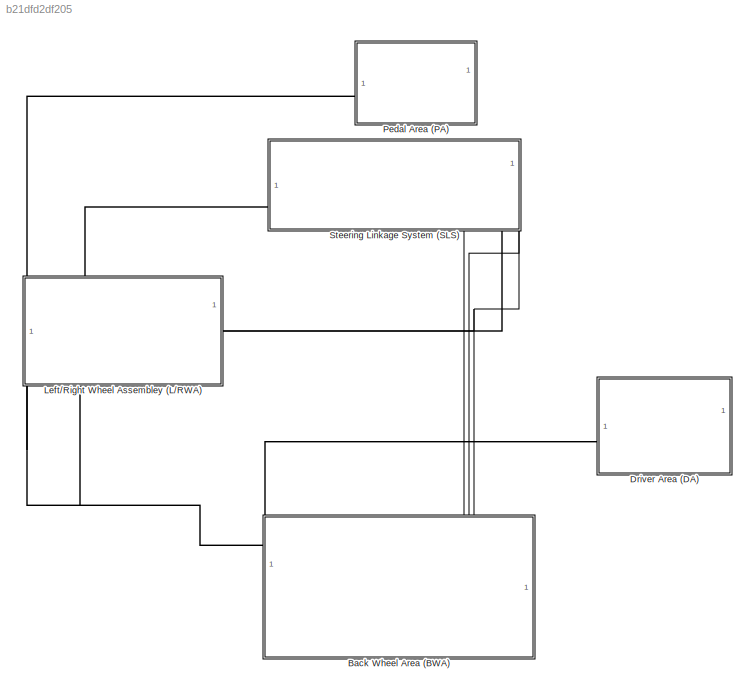
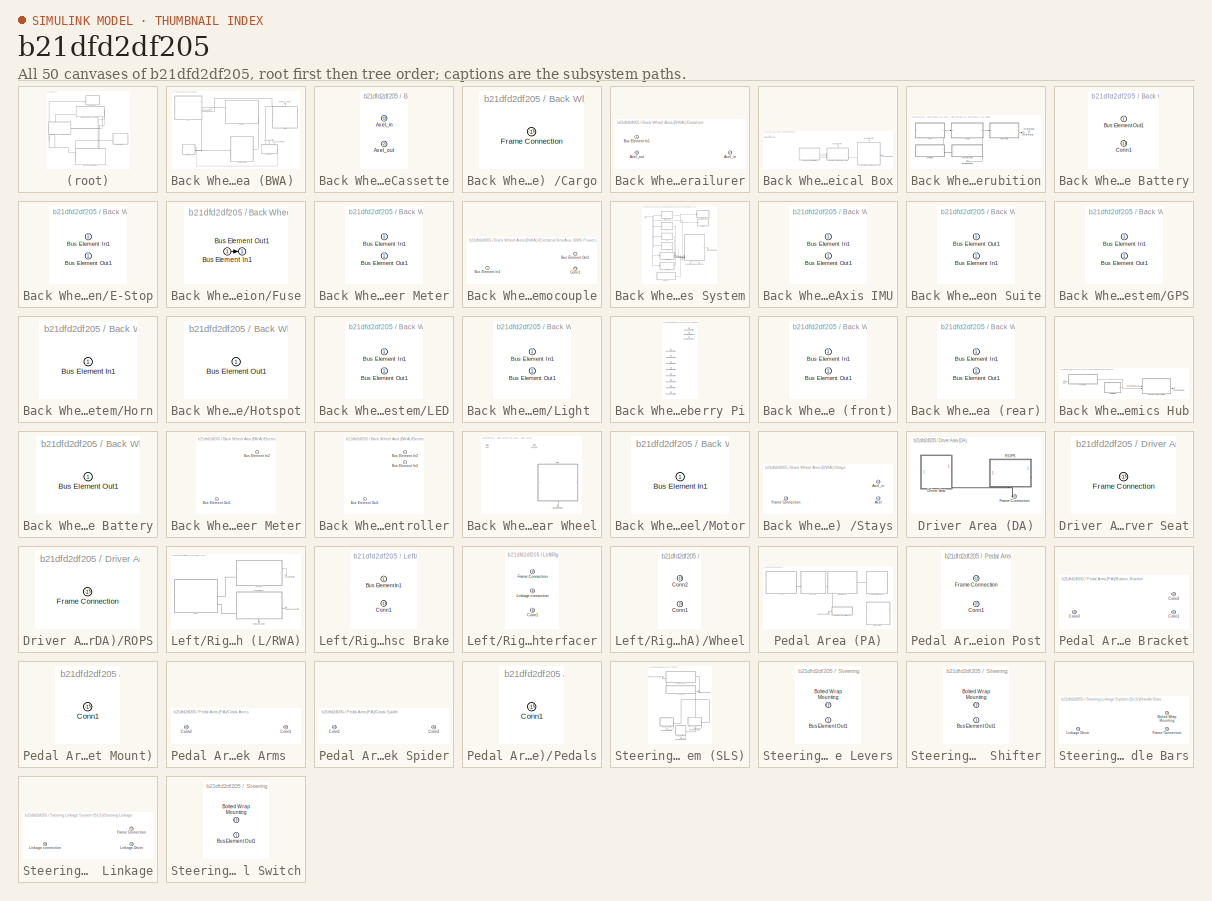
[diagram: thumbnail index - all 50 canvases of the model, root first then tree order]
MODEL slx_b21dfd2df205
KIND model
CONFIG AbsTol = auto
CONFIG EnableMultiTasking = off
CONFIG FixedStep = auto
CONFIG MaxStep = auto
CONFIG MinStep = auto
CONFIG RelTol = 1e-3
CONFIG SampleTimeConstraint = Unconstrained
CONFIG SolverName = VariableStepAuto
CONFIG StartTime = 0.0
CONFIG StopTime = 10.0
BLOCK [SubSystem] Back Wheel Area (BWA) 
  PortSchema = {"entries":[{"content":{"headerSize":26,"margin":15,"minimumSpacing":25,"sides":[{"content":{},"type":"ConnectorPlacement.EquallySpacedRectSide","uuid":"b908bc96-20ac-41af-bd35-1dc4c5c5d227"},{"content":{"side":"RIGHT"},"type":"ConnectorPlacement.EquallySpacedRectSide","uuid":"a58e5db6-c2cf-479b-8575-444173ed86e1"},{"content":{"connectorIds":["In1","In2","In3","LConn1"],"side":"TOP"},"type":"Conne...<+394ch>
BLOCK [SubSystem] Back Wheel Area (BWA) /  Rear Cassette
  PortSchema = {"entries":[{"content":{"headerSize":26,"margin":15,"minimumSpacing":25,"sides":[{"content":{"connectorIds":["LConn2"]},"type":"ConnectorPlacement.EquallySpacedRectSide","uuid":"9a85c35e-563d-4a01-b414-04078d713158"},{"content":{"side":"RIGHT"},"type":"ConnectorPlacement.EquallySpacedRectSide","uuid":"c9009d1a-5d28-4010-89bb-ea158d9a12da"},{"content":{"connectorIds":["LConn1"],"side":"TOP"},"type"...<+275ch>
BLOCK [PMIOPort] Back Wheel Area (BWA) /  Rear Cassette/Axel_in
  Side = Left
BLOCK [PMIOPort] Back Wheel Area (BWA) /  Rear Cassette/Axel_out
  Port = 2
  Side = Left
BLOCK [Inport] Back Wheel Area (BWA) /Bus Element In1
BLOCK [Inport] Back Wheel Area (BWA) /Bus Element In2
  Port = 2
BLOCK [Inport] Back Wheel Area (BWA) /Bus Element In3
  Port = 3
BLOCK [SubSystem] Back Wheel Area (BWA) /Cargo
  PortSchema = {"entries":[{"content":{"headerSize":26,"margin":15,"minimumSpacing":25,"sides":[{"content":{},"type":"ConnectorPlacement.EquallySpacedRectSide","uuid":"9a85c35e-563d-4a01-b414-04078d713158"},{"content":{"side":"RIGHT"},"type":"ConnectorPlacement.EquallySpacedRectSide","uuid":"c9009d1a-5d28-4010-89bb-ea158d9a12da"},{"content":{"connectorIds":["LConn1"],"side":"TOP"},"type":"ConnectorPlacement.Equa...<+250ch>
BLOCK [PMIOPort] Back Wheel Area (BWA) /Cargo/Frame Connection
  Side = Left
BLOCK [SubSystem] Back Wheel Area (BWA) /Derailurer
  PortSchema = {"entries":[{"content":{"headerSize":26,"margin":15,"minimumSpacing":25,"sides":[{"content":{"connectorIds":["LConn1"]},"type":"ConnectorPlacement.EquallySpacedRectSide","uuid":"9a85c35e-563d-4a01-b414-04078d713158"},{"content":{"side":"RIGHT"},"type":"ConnectorPlacement.EquallySpacedRectSide","uuid":"c9009d1a-5d28-4010-89bb-ea158d9a12da"},{"content":{"connectorIds":["In1"],"side":"TOP"},"type":"C...<+424ch>
BLOCK [PMIOPort] Back Wheel Area (BWA) /Derailurer/Axel_in
  Port = 2
  Side = Right
BLOCK [PMIOPort] Back Wheel Area (BWA) /Derailurer/Axel_out
  Side = Left
BLOCK [Inport] Back Wheel Area (BWA) /Derailurer/Bus Element In1
BLOCK [SubSystem] Back Wheel Area (BWA) /Electrical Box
  PortSchema = {"entries":[{"content":{"headerSize":26,"margin":15,"minimumSpacing":25,"sides":[{"content":{},"type":"ConnectorPlacement.EquallySpacedRectSide","uuid":"b908bc96-20ac-41af-bd35-1dc4c5c5d227"},{"content":{"side":"RIGHT"},"type":"ConnectorPlacement.EquallySpacedRectSide","uuid":"a58e5db6-c2cf-479b-8575-444173ed86e1"},{"content":{"connectorIds":["LConn1","In1","In2"],"side":"TOP"},"type":"ConnectorPl...<+412ch>
BLOCK [SubSystem] Back Wheel Area (BWA) /Electrical Box/Aux. BMS Power Distrubition
  PortSchema = {"entries":[{"content":{"headerSize":26,"margin":15,"minimumSpacing":25,"sides":[{"content":{},"type":"ConnectorPlacement.EquallySpacedRectSide","uuid":"b908bc96-20ac-41af-bd35-1dc4c5c5d227"},{"content":{"connectorIds":["Out1","Out2","Out3"],"side":"RIGHT"},"type":"ConnectorPlacement.EquallySpacedRectSide","uuid":"a58e5db6-c2cf-479b-8575-444173ed86e1"},{"content":{"side":"TOP"},"type":"ConnectorPl...<+262ch>
BLOCK [SubSystem] Back Wheel Area (BWA) /Electrical Box/Aux. BMS Power Distrubition/Aux Battery
  PortSchema = {"entries":[{"content":{"headerSize":26,"margin":15,"minimumSpacing":25,"sides":[{"content":{"connectorIds":["Out1"]},"type":"ConnectorPlacement.EquallySpacedRectSide","uuid":"b908bc96-20ac-41af-bd35-1dc4c5c5d227"},{"content":{"connectorIds":["RConn1"],"side":"RIGHT"},"type":"ConnectorPlacement.EquallySpacedRectSide","uuid":"a58e5db6-c2cf-479b-8575-444173ed86e1"},{"content":{"side":"TOP"},"type":"...<+273ch>
BLOCK [Outport] Back Wheel Area (BWA) /Electrical Box/Aux. BMS Power Distrubition/Aux Battery/Bus Element Out1
BLOCK [PMIOPort] Back Wheel Area (BWA) /Electrical Box/Aux. BMS Power Distrubition/Aux Battery/Conn1
  Side = Right
BLOCK [Outport] Back Wheel Area (BWA) /Electrical Box/Aux. BMS Power Distrubition/Bus Element Out1
BLOCK [Outport] Back Wheel Area (BWA) /Electrical Box/Aux. BMS Power Distrubition/Bus Element Out2
  Port = 3
BLOCK [Outport] Back Wheel Area (BWA) /Electrical Box/Aux. BMS Power Distrubition/Bus Element Out3
  Port = 2
BLOCK [SubSystem] Back Wheel Area (BWA) /Electrical Box/Aux. BMS Power Distrubition/E-Stop
  PortSchema = {"entries":[{"content":{"headerSize":26,"margin":15,"minimumSpacing":25,"sides":[{"content":{"connectorIds":["In1"]},"type":"ConnectorPlacement.EquallySpacedRectSide","uuid":"b908bc96-20ac-41af-bd35-1dc4c5c5d227"},{"content":{"connectorIds":["Out1"],"side":"RIGHT"},"type":"ConnectorPlacement.EquallySpacedRectSide","uuid":"a58e5db6-c2cf-479b-8575-444173ed86e1"},{"content":{"side":"TOP"},"type":"Con...<+270ch>  <repeated x7 — deduplicated; at blocks: E-Stop, Fuse, 9 Axis IMU, GPS, LED, camera (front), camera (rear)>
BLOCK [Inport] Back Wheel Area (BWA) /Electrical Box/Aux. BMS Power Distrubition/E-Stop/Bus Element In1
BLOCK [Outport] Back Wheel Area (BWA) /Electrical Box/Aux. BMS Power Distrubition/E-Stop/Bus Element Out1
BLOCK [SubSystem] Back Wheel Area (BWA) /Electrical Box/Aux. BMS Power Distrubition/Fuse
BLOCK [Inport] Back Wheel Area (BWA) /Electrical Box/Aux. BMS Power Distrubition/Fuse/Bus Element In1
BLOCK [Outport] Back Wheel Area (BWA) /Electrical Box/Aux. BMS Power Distrubition/Fuse/Bus Element Out1
BLOCK [SubSystem] Back Wheel Area (BWA) /Electrical Box/Aux. BMS Power Distrubition/Power Meter
  PortSchema = {"entries":[{"content":{"headerSize":26,"margin":15,"minimumSpacing":25,"sides":[{"content":{"connectorIds":["In1"]},"type":"ConnectorPlacement.EquallySpacedRectSide","uuid":"e53759f5-b690-4877-b44a-d4eac11dffdb"},{"content":{"connectorIds":["Out1"],"side":"RIGHT"},"type":"ConnectorPlacement.EquallySpacedRectSide","uuid":"5814382e-6b7a-453f-be59-81d6220d088b"},{"content":{"side":"TOP"},"type":"Con...<+270ch>  <repeated x3 — deduplicated; at blocks: Power Meter, Button Suite, Light>
BLOCK [Inport] Back Wheel Area (BWA) /Electrical Box/Aux. BMS Power Distrubition/Power Meter/Bus Element In1
BLOCK [Outport] Back Wheel Area (BWA) /Electrical Box/Aux. BMS Power Distrubition/Power Meter/Bus Element Out1
BLOCK [SubSystem] Back Wheel Area (BWA) /Electrical Box/Aux. BMS Power Distrubition/Thermocouple
  PortSchema = {"entries":[{"content":{"headerSize":26,"margin":15,"minimumSpacing":25,"sides":[{"content":{"connectorIds":["RConn1"]},"type":"ConnectorPlacement.EquallySpacedRectSide","uuid":"b908bc96-20ac-41af-bd35-1dc4c5c5d227"},{"content":{"connectorIds":["In1"],"side":"RIGHT"},"type":"ConnectorPlacement.EquallySpacedRectSide","uuid":"a58e5db6-c2cf-479b-8575-444173ed86e1"},{"content":{"side":"TOP"},"type":"C...<+422ch>
BLOCK [Inport] Back Wheel Area (BWA) /Electrical Box/Aux. BMS Power Distrubition/Thermocouple/Bus Element In1
BLOCK [Outport] Back Wheel Area (BWA) /Electrical Box/Aux. BMS Power Distrubition/Thermocouple/Bus Element Out1
BLOCK [PMIOPort] Back Wheel Area (BWA) /Electrical Box/Aux. BMS Power Distrubition/Thermocouple/Conn1
  Side = Right
BLOCK [Inport] Back Wheel Area (BWA) /Electrical Box/Bus Element In1
BLOCK [Inport] Back Wheel Area (BWA) /Electrical Box/Bus Element In2
  Port = 2
BLOCK [Outport] Back Wheel Area (BWA) /Electrical Box/Bus Element Out1
BLOCK [PMIOPort] Back Wheel Area (BWA) /Electrical Box/Frame Connection
  Side = Left
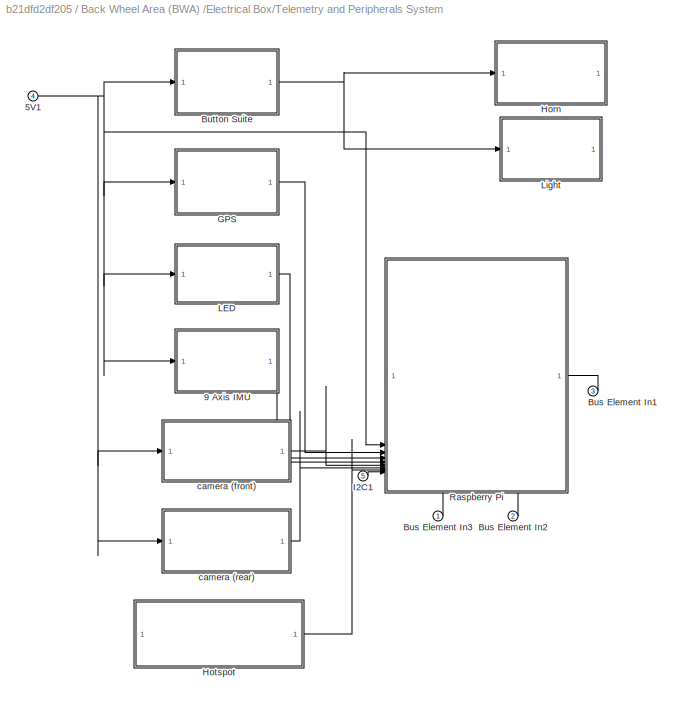
BLOCK [SubSystem] Back Wheel Area (BWA) /Electrical Box/Telemetry and Peripherals System
  PortSchema = {"entries":[{"content":{"headerSize":26,"margin":15,"minimumSpacing":25,"sides":[{"content":{"connectorIds":["In4","In1","In2"]},"type":"ConnectorPlacement.EquallySpacedRectSide","uuid":"934e9821-6dd8-4ade-a7ee-3b6987477e22"},{"content":{"connectorIds":["In5"],"side":"RIGHT"},"type":"ConnectorPlacement.EquallySpacedRectSide","uuid":"f61335fe-7c5e-448a-8aa6-bab86e4b2377"},{"content":{"connectorIds"...<+430ch>
BLOCK [Inport] Back Wheel Area (BWA) /Electrical Box/Telemetry and Peripherals System/5V1
  Port = 4
BLOCK [SubSystem] Back Wheel Area (BWA) /Electrical Box/Telemetry and Peripherals System/9 Axis IMU
BLOCK [Inport] Back Wheel Area (BWA) /Electrical Box/Telemetry and Peripherals System/9 Axis IMU/Bus Element In1
BLOCK [Outport] Back Wheel Area (BWA) /Electrical Box/Telemetry and Peripherals System/9 Axis IMU/Bus Element Out1
BLOCK [Inport] Back Wheel Area (BWA) /Electrical Box/Telemetry and Peripherals System/Bus Element In1
  Port = 3
BLOCK [Inport] Back Wheel Area (BWA) /Electrical Box/Telemetry and Peripherals System/Bus Element In2
  Port = 2
BLOCK [Inport] Back Wheel Area (BWA) /Electrical Box/Telemetry and Peripherals System/Bus Element In3
BLOCK [SubSystem] Back Wheel Area (BWA) /Electrical Box/Telemetry and Peripherals System/Button Suite
BLOCK [Inport] Back Wheel Area (BWA) /Electrical Box/Telemetry and Peripherals System/Button Suite/Bus Element In1
BLOCK [Outport] Back Wheel Area (BWA) /Electrical Box/Telemetry and Peripherals System/Button Suite/Bus Element Out1
BLOCK [SubSystem] Back Wheel Area (BWA) /Electrical Box/Telemetry and Peripherals System/GPS
BLOCK [Inport] Back Wheel Area (BWA) /Electrical Box/Telemetry and Peripherals System/GPS/Bus Element In1
BLOCK [Outport] Back Wheel Area (BWA) /Electrical Box/Telemetry and Peripherals System/GPS/Bus Element Out1
BLOCK [SubSystem] Back Wheel Area (BWA) /Electrical Box/Telemetry and Peripherals System/Horn
  PortSchema = {"entries":[{"content":{"headerSize":26,"margin":15,"minimumSpacing":25,"sides":[{"content":{"connectorIds":["In1"]},"type":"ConnectorPlacement.EquallySpacedRectSide","uuid":"b908bc96-20ac-41af-bd35-1dc4c5c5d227"},{"content":{"side":"RIGHT"},"type":"ConnectorPlacement.EquallySpacedRectSide","uuid":"a58e5db6-c2cf-479b-8575-444173ed86e1"},{"content":{"side":"TOP"},"type":"ConnectorPlacement.EquallyS...<+246ch>
BLOCK [Inport] Back Wheel Area (BWA) /Electrical Box/Telemetry and Peripherals System/Horn/Bus Element In1
BLOCK [SubSystem] Back Wheel Area (BWA) /Electrical Box/Telemetry and Peripherals System/Hotspot
  PortSchema = {"entries":[{"content":{"headerSize":26,"margin":15,"minimumSpacing":25,"sides":[{"content":{},"type":"ConnectorPlacement.EquallySpacedRectSide","uuid":"b908bc96-20ac-41af-bd35-1dc4c5c5d227"},{"content":{"connectorIds":["Out1"],"side":"RIGHT"},"type":"ConnectorPlacement.EquallySpacedRectSide","uuid":"a58e5db6-c2cf-479b-8575-444173ed86e1"},{"content":{"side":"TOP"},"type":"ConnectorPlacement.Equall...<+248ch>
BLOCK [Outport] Back Wheel Area (BWA) /Electrical Box/Telemetry and Peripherals System/Hotspot/Bus Element Out1
BLOCK [Inport] Back Wheel Area (BWA) /Electrical Box/Telemetry and Peripherals System/I2C1
  Port = 5
BLOCK [SubSystem] Back Wheel Area (BWA) /Electrical Box/Telemetry and Peripherals System/LED
BLOCK [Inport] Back Wheel Area (BWA) /Electrical Box/Telemetry and Peripherals System/LED/Bus Element In1
BLOCK [Outport] Back Wheel Area (BWA) /Electrical Box/Telemetry and Peripherals System/LED/Bus Element Out1
BLOCK [SubSystem] Back Wheel Area (BWA) /Electrical Box/Telemetry and Peripherals System/Light 
BLOCK [Inport] Back Wheel Area (BWA) /Electrical Box/Telemetry and Peripherals System/Light /Bus Element In1
BLOCK [Outport] Back Wheel Area (BWA) /Electrical Box/Telemetry and Peripherals System/Light /Bus Element Out1
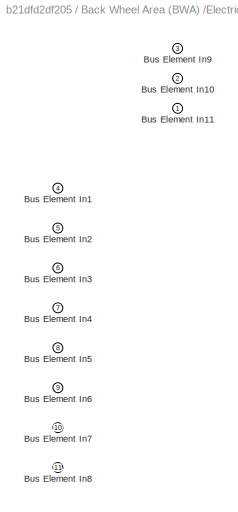
BLOCK [SubSystem] Back Wheel Area (BWA) /Electrical Box/Telemetry and Peripherals System/Raspberry Pi
  PortSchema = {"entries":[{"content":{"headerSize":26,"margin":15,"minimumSpacing":25,"sides":[{"content":{"connectorIds":["In4","In5","In6","In7","In8","In9","In10","In11"]},"type":"ConnectorPlacement.EquallySpacedRectSide","uuid":"b908bc96-20ac-41af-bd35-1dc4c5c5d227"},{"content":{"connectorIds":["In1"],"side":"RIGHT"},"type":"ConnectorPlacement.EquallySpacedRectSide","uuid":"a58e5db6-c2cf-479b-8575-444173ed8...<+468ch>
BLOCK [Inport] Back Wheel Area (BWA) /Electrical Box/Telemetry and Peripherals System/Raspberry Pi/Bus Element In1
  Port = 4
BLOCK [Inport] Back Wheel Area (BWA) /Electrical Box/Telemetry and Peripherals System/Raspberry Pi/Bus Element In10
  Port = 2
BLOCK [Inport] Back Wheel Area (BWA) /Electrical Box/Telemetry and Peripherals System/Raspberry Pi/Bus Element In11
BLOCK [Inport] Back Wheel Area (BWA) /Electrical Box/Telemetry and Peripherals System/Raspberry Pi/Bus Element In2
  Port = 5
BLOCK [Inport] Back Wheel Area (BWA) /Electrical Box/Telemetry and Peripherals System/Raspberry Pi/Bus Element In3
  Port = 6
BLOCK [Inport] Back Wheel Area (BWA) /Electrical Box/Telemetry and Peripherals System/Raspberry Pi/Bus Element In4
  Port = 7
BLOCK [Inport] Back Wheel Area (BWA) /Electrical Box/Telemetry and Peripherals System/Raspberry Pi/Bus Element In5
  Port = 8
BLOCK [Inport] Back Wheel Area (BWA) /Electrical Box/Telemetry and Peripherals System/Raspberry Pi/Bus Element In6
  Port = 9
BLOCK [Inport] Back Wheel Area (BWA) /Electrical Box/Telemetry and Peripherals System/Raspberry Pi/Bus Element In7
  Port = 10
BLOCK [Inport] Back Wheel Area (BWA) /Electrical Box/Telemetry and Peripherals System/Raspberry Pi/Bus Element In8
  Port = 11
BLOCK [Inport] Back Wheel Area (BWA) /Electrical Box/Telemetry and Peripherals System/Raspberry Pi/Bus Element In9
  Port = 3
BLOCK [SubSystem] Back Wheel Area (BWA) /Electrical Box/Telemetry and Peripherals System/camera (front)
BLOCK [Inport] Back Wheel Area (BWA) /Electrical Box/Telemetry and Peripherals System/camera (front)/Bus Element In1
BLOCK [Outport] Back Wheel Area (BWA) /Electrical Box/Telemetry and Peripherals System/camera (front)/Bus Element Out1
BLOCK [SubSystem] Back Wheel Area (BWA) /Electrical Box/Telemetry and Peripherals System/camera (rear)
BLOCK [Inport] Back Wheel Area (BWA) /Electrical Box/Telemetry and Peripherals System/camera (rear)/Bus Element In1
BLOCK [Outport] Back Wheel Area (BWA) /Electrical Box/Telemetry and Peripherals System/camera (rear)/Bus Element Out1
BLOCK [SubSystem] Back Wheel Area (BWA) /Electrical Box/Vehicle Dynamics Hub
  PortSchema = {"entries":[{"content":{"headerSize":26,"margin":15,"minimumSpacing":25,"sides":[{"content":{"connectorIds":["Out2"]},"type":"ConnectorPlacement.EquallySpacedRectSide","uuid":"130811b4-e32d-41d0-b322-e8fa04594c75"},{"content":{"connectorIds":["Out1"],"side":"RIGHT"},"type":"ConnectorPlacement.EquallySpacedRectSide","uuid":"8119c0ce-9166-49a4-a650-142de91b8b5d"},{"content":{"connectorIds":["In1"],"...<+294ch>
BLOCK [SubSystem] Back Wheel Area (BWA) /Electrical Box/Vehicle Dynamics Hub/ Motor Battery
  PortSchema = {"entries":[{"content":{"headerSize":26,"margin":15,"minimumSpacing":25,"sides":[{"content":{},"type":"ConnectorPlacement.EquallySpacedRectSide","uuid":"e53759f5-b690-4877-b44a-d4eac11dffdb"},{"content":{"connectorIds":["Out1"],"side":"RIGHT"},"type":"ConnectorPlacement.EquallySpacedRectSide","uuid":"5814382e-6b7a-453f-be59-81d6220d088b"},{"content":{"side":"TOP"},"type":"ConnectorPlacement.Equall...<+248ch>
BLOCK [Outport] Back Wheel Area (BWA) /Electrical Box/Vehicle Dynamics Hub/ Motor Battery/Bus Element Out1
BLOCK [Inport] Back Wheel Area (BWA) /Electrical Box/Vehicle Dynamics Hub/Bus Element In1
BLOCK [Outport] Back Wheel Area (BWA) /Electrical Box/Vehicle Dynamics Hub/Bus Element Out1
BLOCK [Outport] Back Wheel Area (BWA) /Electrical Box/Vehicle Dynamics Hub/I2C1
  Port = 2
BLOCK [SubSystem] Back Wheel Area (BWA) /Electrical Box/Vehicle Dynamics Hub/Power Meter
  PortSchema = {"entries":[{"content":{"headerSize":26,"margin":15,"minimumSpacing":25,"sides":[{"content":{"connectorIds":["Out1"]},"type":"ConnectorPlacement.EquallySpacedRectSide","uuid":"e53759f5-b690-4877-b44a-d4eac11dffdb"},{"content":{"connectorIds":["In1"],"side":"RIGHT"},"type":"ConnectorPlacement.EquallySpacedRectSide","uuid":"5814382e-6b7a-453f-be59-81d6220d088b"},{"content":{"side":"TOP"},"type":"Con...<+270ch>
BLOCK [Inport] Back Wheel Area (BWA) /Electrical Box/Vehicle Dynamics Hub/Power Meter/Bus Element In2
BLOCK [Outport] Back Wheel Area (BWA) /Electrical Box/Vehicle Dynamics Hub/Power Meter/Bus Element Out1
BLOCK [SubSystem] Back Wheel Area (BWA) /Electrical Box/Vehicle Dynamics Hub/Vehical Dynamics Controller
  PortSchema = {"entries":[{"content":{"headerSize":26,"margin":15,"minimumSpacing":25,"sides":[{"content":{"connectorIds":["In1","In2"]},"type":"ConnectorPlacement.EquallySpacedRectSide","uuid":"b908bc96-20ac-41af-bd35-1dc4c5c5d227"},{"content":{"connectorIds":["Out1"],"side":"RIGHT"},"type":"ConnectorPlacement.EquallySpacedRectSide","uuid":"a58e5db6-c2cf-479b-8575-444173ed86e1"},{"content":{"side":"TOP"},"type...<+402ch>
BLOCK [Inport] Back Wheel Area (BWA) /Electrical Box/Vehicle Dynamics Hub/Vehical Dynamics Controller/Bus Element In3
  Port = 2
BLOCK [Inport] Back Wheel Area (BWA) /Electrical Box/Vehicle Dynamics Hub/Vehical Dynamics Controller/Bus Element In4
BLOCK [Outport] Back Wheel Area (BWA) /Electrical Box/Vehicle Dynamics Hub/Vehical Dynamics Controller/Bus Element Out1
BLOCK [PMIOPort] Back Wheel Area (BWA) /Frame Connection
  Side = Left
BLOCK [SubSystem] Back Wheel Area (BWA) /Rear Wheel
  PortSchema = {"entries":[{"content":{"headerSize":26,"margin":15,"minimumSpacing":25,"sides":[{"content":{},"type":"ConnectorPlacement.EquallySpacedRectSide","uuid":"9a85c35e-563d-4a01-b414-04078d713158"},{"content":{"connectorIds":["RConn1"],"side":"RIGHT"},"type":"ConnectorPlacement.EquallySpacedRectSide","uuid":"c9009d1a-5d28-4010-89bb-ea158d9a12da"},{"content":{"connectorIds":["LConn1"],"side":"TOP"},"type...<+425ch>
BLOCK [PMIOPort] Back Wheel Area (BWA) /Rear Wheel/Axel
  Side = Left
BLOCK [PMIOPort] Back Wheel Area (BWA) /Rear Wheel/Axel_out
  Port = 2
  Side = Right
BLOCK [Inport] Back Wheel Area (BWA) /Rear Wheel/Bus Element In1
BLOCK [SubSystem] Back Wheel Area (BWA) /Rear Wheel/Motor
  PortSchema = {"entries":[{"content":{"headerSize":26,"margin":15,"minimumSpacing":25,"sides":[{"content":{},"type":"ConnectorPlacement.EquallySpacedRectSide","uuid":"9a85c35e-563d-4a01-b414-04078d713158"},{"content":{"side":"RIGHT"},"type":"ConnectorPlacement.EquallySpacedRectSide","uuid":"c9009d1a-5d28-4010-89bb-ea158d9a12da"},{"content":{"side":"TOP"},"type":"ConnectorPlacement.EquallySpacedRectSide","uuid":...<+373ch>
BLOCK [Inport] Back Wheel Area (BWA) /Rear Wheel/Motor/Bus Element In1
BLOCK [SubSystem] Back Wheel Area (BWA) /Stays
  PortSchema = {"entries":[{"content":{"headerSize":26,"margin":15,"minimumSpacing":25,"sides":[{"content":{},"type":"ConnectorPlacement.EquallySpacedRectSide","uuid":"9a85c35e-563d-4a01-b414-04078d713158"},{"content":{"connectorIds":["LConn1","RConn1"],"side":"RIGHT"},"type":"ConnectorPlacement.EquallySpacedRectSide","uuid":"c9009d1a-5d28-4010-89bb-ea158d9a12da"},{"content":{"side":"TOP"},"type":"ConnectorPlace...<+411ch>
BLOCK [PMIOPort] Back Wheel Area (BWA) /Stays/Axel
  Port = 2
  Side = Right
BLOCK [PMIOPort] Back Wheel Area (BWA) /Stays/Axel_in
  Side = Right
BLOCK [PMIOPort] Back Wheel Area (BWA) /Stays/Frame Connection
  Port = 3
  Side = Left
BLOCK [SubSystem] Driver Area (DA)
  PortSchema = {"entries":[{"content":{"headerSize":26,"margin":15,"minimumSpacing":25,"sides":[{"content":{"connectorIds":["RConn1"]},"type":"ConnectorPlacement.EquallySpacedRectSide","uuid":"9a85c35e-563d-4a01-b414-04078d713158"},{"content":{"side":"RIGHT"},"type":"ConnectorPlacement.EquallySpacedRectSide","uuid":"c9009d1a-5d28-4010-89bb-ea158d9a12da"},{"content":{"side":"TOP"},"type":"ConnectorPlacement.Equal...<+375ch>
BLOCK [SubSystem] Driver Area (DA)/Driver Seat
  PortSchema = {"entries":[{"content":{"headerSize":26,"margin":15,"minimumSpacing":25,"sides":[{"content":{},"type":"ConnectorPlacement.EquallySpacedRectSide","uuid":"9a85c35e-563d-4a01-b414-04078d713158"},{"content":{"side":"RIGHT"},"type":"ConnectorPlacement.EquallySpacedRectSide","uuid":"c9009d1a-5d28-4010-89bb-ea158d9a12da"},{"content":{"side":"TOP"},"type":"ConnectorPlacement.EquallySpacedRectSide","uuid":...<+376ch>
BLOCK [PMIOPort] Driver Area (DA)/Driver Seat/Frame Connection
  Side = Right
BLOCK [PMIOPort] Driver Area (DA)/Frame Connection
  Side = Right
BLOCK [SubSystem] Driver Area (DA)/ROPS
  PortSchema = {"entries":[{"content":{"headerSize":26,"margin":15,"minimumSpacing":25,"sides":[{"content":{},"type":"ConnectorPlacement.EquallySpacedRectSide","uuid":"9a85c35e-563d-4a01-b414-04078d713158"},{"content":{"side":"RIGHT"},"type":"ConnectorPlacement.EquallySpacedRectSide","uuid":"c9009d1a-5d28-4010-89bb-ea158d9a12da"},{"content":{"side":"TOP"},"type":"ConnectorPlacement.EquallySpacedRectSide","uuid":...<+376ch>
BLOCK [PMIOPort] Driver Area (DA)/ROPS/Frame Connection
  Side = Right
BLOCK [SubSystem] Left//Right Wheel Assembley (L//RWA)
  PortSchema = {"entries":[{"content":{"headerSize":26,"margin":15,"minimumSpacing":25,"sides":[{"content":{},"type":"ConnectorPlacement.EquallySpacedRectSide","uuid":"9a85c35e-563d-4a01-b414-04078d713158"},{"content":{"connectorIds":["RConn1","RConn2","In1"],"side":"RIGHT"},"type":"ConnectorPlacement.EquallySpacedRectSide","uuid":"c9009d1a-5d28-4010-89bb-ea158d9a12da"},{"content":{"side":"TOP"},"type":"Connecto...<+391ch>
BLOCK [Inport] Left//Right Wheel Assembley (L//RWA)/Bus Element In1
BLOCK [SubSystem] Left//Right Wheel Assembley (L//RWA)/Disc Brake
  PortSchema = {"entries":[{"content":{"headerSize":26,"margin":15,"minimumSpacing":25,"sides":[{"content":{"connectorIds":["LConn1"]},"type":"ConnectorPlacement.EquallySpacedRectSide","uuid":"9a85c35e-563d-4a01-b414-04078d713158"},{"content":{"connectorIds":["In1"],"side":"RIGHT"},"type":"ConnectorPlacement.EquallySpacedRectSide","uuid":"c9009d1a-5d28-4010-89bb-ea158d9a12da"},{"content":{"side":"TOP"},"type":"C...<+272ch>
BLOCK [Inport] Left//Right Wheel Assembley (L//RWA)/Disc Brake/Bus Element In1
BLOCK [PMIOPort] Left//Right Wheel Assembley (L//RWA)/Disc Brake/Conn1
  Side = Left
BLOCK [PMIOPort] Left//Right Wheel Assembley (L//RWA)/Frame Connection
  Port = 2
  Side = Right
BLOCK [SubSystem] Left//Right Wheel Assembley (L//RWA)/Kingpin Interfacer
  PortSchema = {"entries":[{"content":{"headerSize":26,"margin":15,"minimumSpacing":25,"sides":[{"content":{"connectorIds":["RConn3"]},"type":"ConnectorPlacement.EquallySpacedRectSide","uuid":"9a85c35e-563d-4a01-b414-04078d713158"},{"content":{"connectorIds":["RConn2"],"side":"RIGHT"},"type":"ConnectorPlacement.EquallySpacedRectSide","uuid":"c9009d1a-5d28-4010-89bb-ea158d9a12da"},{"content":{"side":"TOP"},"type"...<+427ch>
BLOCK [PMIOPort] Left//Right Wheel Assembley (L//RWA)/Kingpin Interfacer/Conn1
  Port = 3
  Side = Right
BLOCK [PMIOPort] Left//Right Wheel Assembley (L//RWA)/Kingpin Interfacer/Frame Connection
  Side = Right
BLOCK [PMIOPort] Left//Right Wheel Assembley (L//RWA)/Kingpin Interfacer/Linkage connection
  Port = 2
  Side = Right
BLOCK [PMIOPort] Left//Right Wheel Assembley (L//RWA)/Linkage connection
  Side = Right
BLOCK [SubSystem] Left//Right Wheel Assembley (L//RWA)/Wheel
  PortSchema = {"entries":[{"content":{"headerSize":26,"margin":15,"minimumSpacing":25,"sides":[{"content":{},"type":"ConnectorPlacement.EquallySpacedRectSide","uuid":"9a85c35e-563d-4a01-b414-04078d713158"},{"content":{"connectorIds":["RConn1","RConn2"],"side":"RIGHT"},"type":"ConnectorPlacement.EquallySpacedRectSide","uuid":"c9009d1a-5d28-4010-89bb-ea158d9a12da"},{"content":{"side":"TOP"},"type":"ConnectorPlace...<+385ch>
BLOCK [PMIOPort] Left//Right Wheel Assembley (L//RWA)/Wheel/Conn1
  Port = 2
  Side = Right
BLOCK [PMIOPort] Left//Right Wheel Assembley (L//RWA)/Wheel/Conn2
  Side = Right
BLOCK [SubSystem] Pedal Area (PA)
  PortSchema = {"entries":[{"content":{"headerSize":26,"margin":15,"minimumSpacing":25,"sides":[{"content":{"connectorIds":["RConn1"]},"type":"ConnectorPlacement.EquallySpacedRectSide","uuid":"9a85c35e-563d-4a01-b414-04078d713158"},{"content":{"side":"RIGHT"},"type":"ConnectorPlacement.EquallySpacedRectSide","uuid":"c9009d1a-5d28-4010-89bb-ea158d9a12da"},{"content":{"side":"TOP"},"type":"ConnectorPlacement.Equal...<+375ch>
BLOCK [SubSystem] Pedal Area (PA)/Adjustable Leg Position Post
  PortSchema = {"entries":[{"content":{"headerSize":26,"margin":15,"minimumSpacing":25,"sides":[{"content":{"connectorIds":["LConn1"]},"type":"ConnectorPlacement.EquallySpacedRectSide","uuid":"9a85c35e-563d-4a01-b414-04078d713158"},{"content":{"side":"RIGHT"},"type":"ConnectorPlacement.EquallySpacedRectSide","uuid":"c9009d1a-5d28-4010-89bb-ea158d9a12da"},{"content":{"connectorIds":["LConn2"],"side":"TOP"},"type"...<+275ch>
BLOCK [PMIOPort] Pedal Area (PA)/Adjustable Leg Position Post/Conn1
  Port = 2
  Side = Left
BLOCK [PMIOPort] Pedal Area (PA)/Adjustable Leg Position Post/Frame Connection
  Side = Left
BLOCK [SubSystem] Pedal Area (PA)/Bottom Bracket
  PortSchema = {"entries":[{"content":{"headerSize":26,"margin":15,"minimumSpacing":25,"sides":[{"content":{"connectorIds":["LConn1"]},"type":"ConnectorPlacement.EquallySpacedRectSide","uuid":"9a85c35e-563d-4a01-b414-04078d713158"},{"content":{"connectorIds":["RConn1"],"side":"RIGHT"},"type":"ConnectorPlacement.EquallySpacedRectSide","uuid":"c9009d1a-5d28-4010-89bb-ea158d9a12da"},{"content":{"side":"TOP"},"type"...<+427ch>
BLOCK [PMIOPort] Pedal Area (PA)/Bottom Bracket/Conn1
  Port = 2
  Side = Right
BLOCK [PMIOPort] Pedal Area (PA)/Bottom Bracket/Conn2
  Side = Right
BLOCK [PMIOPort] Pedal Area (PA)/Bottom Bracket/Conn3
  Port = 3
  Side = Left
BLOCK [SubSystem] Pedal Area (PA)/Chain Ring (Direct Mount)
  PortSchema = {"entries":[{"content":{"headerSize":26,"margin":15,"minimumSpacing":25,"sides":[{"content":{"connectorIds":["LConn1"]},"type":"ConnectorPlacement.EquallySpacedRectSide","uuid":"9a85c35e-563d-4a01-b414-04078d713158"},{"content":{"side":"RIGHT"},"type":"ConnectorPlacement.EquallySpacedRectSide","uuid":"c9009d1a-5d28-4010-89bb-ea158d9a12da"},{"content":{"side":"TOP"},"type":"ConnectorPlacement.Equal...<+249ch>
BLOCK [PMIOPort] Pedal Area (PA)/Chain Ring (Direct Mount)/Conn1
  Side = Left
BLOCK [SubSystem] Pedal Area (PA)/Crank Arms  
  PortSchema = {"entries":[{"content":{"headerSize":26,"margin":15,"minimumSpacing":25,"sides":[{"content":{"connectorIds":["LConn1"]},"type":"ConnectorPlacement.EquallySpacedRectSide","uuid":"81016873-e8e6-42ef-8317-d2a0e76f04ff"},{"content":{"connectorIds":["RConn1"],"side":"RIGHT"},"type":"ConnectorPlacement.EquallySpacedRectSide","uuid":"9f3e6e90-2174-4f56-96c7-9d8c371fffb1"},{"content":{"side":"TOP"},"type"...<+275ch>
BLOCK [PMIOPort] Pedal Area (PA)/Crank Arms  /Conn1
  Side = Right
BLOCK [PMIOPort] Pedal Area (PA)/Crank Arms  /Conn2
  Port = 2
  Side = Left
BLOCK [SubSystem] Pedal Area (PA)/Crank Spider
  PortSchema = {"entries":[{"content":{"headerSize":26,"margin":15,"minimumSpacing":25,"sides":[{"content":{"connectorIds":["LConn1"]},"type":"ConnectorPlacement.EquallySpacedRectSide","uuid":"81016873-e8e6-42ef-8317-d2a0e76f04ff"},{"content":{"connectorIds":["RConn1"],"side":"RIGHT"},"type":"ConnectorPlacement.EquallySpacedRectSide","uuid":"9f3e6e90-2174-4f56-96c7-9d8c371fffb1"},{"content":{"side":"TOP"},"type"...<+275ch>
BLOCK [PMIOPort] Pedal Area (PA)/Crank Spider/Conn1
  Side = Left
BLOCK [PMIOPort] Pedal Area (PA)/Crank Spider/Conn2
  Port = 2
  Side = Right
BLOCK [PMIOPort] Pedal Area (PA)/Frame Connection
  Side = Right
BLOCK [SubSystem] Pedal Area (PA)/Pedals
  PortSchema = {"entries":[{"content":{"headerSize":26,"margin":15,"minimumSpacing":25,"sides":[{"content":{},"type":"ConnectorPlacement.EquallySpacedRectSide","uuid":"9a85c35e-563d-4a01-b414-04078d713158"},{"content":{"connectorIds":["RConn1"],"side":"RIGHT"},"type":"ConnectorPlacement.EquallySpacedRectSide","uuid":"c9009d1a-5d28-4010-89bb-ea158d9a12da"},{"content":{"side":"TOP"},"type":"ConnectorPlacement.Equa...<+250ch>
BLOCK [PMIOPort] Pedal Area (PA)/Pedals/Conn1
  Side = Right
BLOCK [SubSystem] Steering Linkage System (SLS)
  PortSchema = {"entries":[{"content":{"headerSize":26,"margin":15,"minimumSpacing":25,"sides":[{"content":{"connectorIds":["RConn1"]},"type":"ConnectorPlacement.EquallySpacedRectSide","uuid":"9a85c35e-563d-4a01-b414-04078d713158"},{"content":{"side":"RIGHT"},"type":"ConnectorPlacement.EquallySpacedRectSide","uuid":"c9009d1a-5d28-4010-89bb-ea158d9a12da"},{"content":{"side":"TOP"},"type":"ConnectorPlacement.Equal...<+422ch>
BLOCK [SubSystem] Steering Linkage System (SLS)/Brake Levers
  PortSchema = {"entries":[{"content":{"headerSize":26,"margin":15,"minimumSpacing":25,"sides":[{"content":{},"type":"ConnectorPlacement.EquallySpacedRectSide","uuid":"9a85c35e-563d-4a01-b414-04078d713158"},{"content":{"side":"RIGHT"},"type":"ConnectorPlacement.EquallySpacedRectSide","uuid":"c9009d1a-5d28-4010-89bb-ea158d9a12da"},{"content":{"connectorIds":["LConn1"],"side":"TOP"},"type":"ConnectorPlacement.Equa...<+400ch>  <repeated x3 — deduplicated; at blocks: Brake Levers, Gear Shifter, Turn Signal Switch>
BLOCK [PMIOPort] Steering Linkage System (SLS)/Brake Levers/Bolted Wrap Mounting
  Side = Left
BLOCK [Outport] Steering Linkage System (SLS)/Brake Levers/Bus Element Out1
BLOCK [Outport] Steering Linkage System (SLS)/Bus Element Out1
  Port = 3
BLOCK [Outport] Steering Linkage System (SLS)/Bus Element Out2
  Port = 2
BLOCK [Outport] Steering Linkage System (SLS)/Bus Element Out3
BLOCK [PMIOPort] Steering Linkage System (SLS)/Frame Connection
  Port = 2
  Side = Right
BLOCK [SubSystem] Steering Linkage System (SLS)/Gear Shifter
BLOCK [PMIOPort] Steering Linkage System (SLS)/Gear Shifter/Bolted Wrap Mounting
  Side = Left
BLOCK [Outport] Steering Linkage System (SLS)/Gear Shifter/Bus Element Out1
BLOCK [SubSystem] Steering Linkage System (SLS)/Handle Bars
  PortSchema = {"entries":[{"content":{"headerSize":26,"margin":15,"minimumSpacing":25,"sides":[{"content":{"connectorIds":["LConn1"]},"type":"ConnectorPlacement.EquallySpacedRectSide","uuid":"9a85c35e-563d-4a01-b414-04078d713158"},{"content":{"connectorIds":["RConn2"],"side":"RIGHT"},"type":"ConnectorPlacement.EquallySpacedRectSide","uuid":"c9009d1a-5d28-4010-89bb-ea158d9a12da"},{"content":{"side":"TOP"},"type"...<+427ch>
BLOCK [PMIOPort] Steering Linkage System (SLS)/Handle Bars/Bolted Wrap Mounting
  Port = 2
  Side = Right
BLOCK [PMIOPort] Steering Linkage System (SLS)/Handle Bars/Frame Connection
  Port = 3
  Side = Right
BLOCK [PMIOPort] Steering Linkage System (SLS)/Handle Bars/Linkage Driver
  Side = Left
BLOCK [PMIOPort] Steering Linkage System (SLS)/Linkage connection
  Side = Right
BLOCK [SubSystem] Steering Linkage System (SLS)/Steering Linkage
  PortSchema = {"entries":[{"content":{"headerSize":26,"margin":15,"minimumSpacing":25,"sides":[{"content":{"connectorIds":["LConn1","RConn2"]},"type":"ConnectorPlacement.EquallySpacedRectSide","uuid":"9a85c35e-563d-4a01-b414-04078d713158"},{"content":{"connectorIds":["RConn1"],"side":"RIGHT"},"type":"ConnectorPlacement.EquallySpacedRectSide","uuid":"c9009d1a-5d28-4010-89bb-ea158d9a12da"},{"content":{"side":"TOP...<+410ch>
BLOCK [PMIOPort] Steering Linkage System (SLS)/Steering Linkage/Frame Connection
  Side = Right
BLOCK [PMIOPort] Steering Linkage System (SLS)/Steering Linkage/Linkage Driver
  Port = 2
  Side = Right
BLOCK [PMIOPort] Steering Linkage System (SLS)/Steering Linkage/Linkage connection
  Port = 3
  Side = Left
BLOCK [SubSystem] Steering Linkage System (SLS)/Turn Signal Switch
BLOCK [PMIOPort] Steering Linkage System (SLS)/Turn Signal Switch/Bolted Wrap Mounting
  Side = Left
BLOCK [Outport] Steering Linkage System (SLS)/Turn Signal Switch/Bus Element Out1
LINE Back Wheel Area (BWA) /Bus Element In1:1 -> Back Wheel Area (BWA) /Electrical Box:1
LINE Back Wheel Area (BWA) /Bus Element In3:1 -> Back Wheel Area (BWA) /Electrical Box:2
LINE Back Wheel Area (BWA) /Electrical Box/Aux. BMS Power Distrubition/Aux Battery:1 -> Back Wheel Area (BWA) /Electrical Box/Aux. BMS Power Distrubition/Fuse:1
NET Back Wheel Area (BWA) /Electrical Box/Aux. BMS Power Distrubition/E-Stop:1 -> Back Wheel Area (BWA) /Electrical Box/Aux. BMS Power Distrubition/Power Meter:1, Back Wheel Area (BWA) /Electrical Box/Aux. BMS Power Distrubition/Thermocouple:1
LINE Back Wheel Area (BWA) /Electrical Box/Aux. BMS Power Distrubition/Fuse/Bus Element In1:1 -> Back Wheel Area (BWA) /Electrical Box/Aux. BMS Power Distrubition/Fuse/Bus Element Out1:1
LINE Back Wheel Area (BWA) /Electrical Box/Aux. BMS Power Distrubition/Fuse:1 -> Back Wheel Area (BWA) /Electrical Box/Aux. BMS Power Distrubition/E-Stop:1
LINE Back Wheel Area (BWA) /Electrical Box/Aux. BMS Power Distrubition/Power Meter:1 -> Back Wheel Area (BWA) /Electrical Box/Aux. BMS Power Distrubition/Bus Element Out3:1
LINE Back Wheel Area (BWA) /Electrical Box/Aux. BMS Power Distrubition/Thermocouple:1 -> Back Wheel Area (BWA) /Electrical Box/Aux. BMS Power Distrubition/Bus Element Out2:1
LINE Back Wheel Area (BWA) /Electrical Box/Aux. BMS Power Distrubition:1 -> Back Wheel Area (BWA) /Electrical Box/Telemetry and Peripherals System:4
LINE Back Wheel Area (BWA) /Electrical Box/Aux. BMS Power Distrubition:2 -> Back Wheel Area (BWA) /Electrical Box/Telemetry and Peripherals System:1
LINE Back Wheel Area (BWA) /Electrical Box/Aux. BMS Power Distrubition:3 -> Back Wheel Area (BWA) /Electrical Box/Telemetry and Peripherals System:2
LINE Back Wheel Area (BWA) /Electrical Box/Bus Element In1:1 -> Back Wheel Area (BWA) /Electrical Box/Telemetry and Peripherals System:3
LINE Back Wheel Area (BWA) /Electrical Box/Bus Element In2:1 -> Back Wheel Area (BWA) /Electrical Box/Vehicle Dynamics Hub:1
NET Back Wheel Area (BWA) /Electrical Box/Telemetry and Peripherals System/5V1:1 -> Back Wheel Area (BWA) /Electrical Box/Telemetry and Peripherals System/9 Axis IMU:1, Back Wheel Area (BWA) /Electrical Box/Telemetry and Peripherals System/Button Suite:1, Back Wheel Area (BWA) /Electrical Box/Telemetry and Peripherals System/GPS:1, Back Wheel Area (BWA) /Electrical Box/Telemetry and Peripherals System/LED:1, Back Wheel Area (BWA) /Electrical Box/Telemetry and Peripherals System/Raspberry Pi:4, Back Wheel Area (BWA) /Electrical Box/Telemetry and Peripherals System/camera (front):1, Back Wheel Area (BWA) /Electrical Box/Telemetry and Peripherals System/camera (rear):1
LINE Back Wheel Area (BWA) /Electrical Box/Telemetry and Peripherals System/9 Axis IMU:1 -> Back Wheel Area (BWA) /Electrical Box/Telemetry and Peripherals System/Raspberry Pi:7
LINE Back Wheel Area (BWA) /Electrical Box/Telemetry and Peripherals System/Bus Element In1:1 -> Back Wheel Area (BWA) /Electrical Box/Telemetry and Peripherals System/Raspberry Pi:1
LINE Back Wheel Area (BWA) /Electrical Box/Telemetry and Peripherals System/Bus Element In2:1 -> Back Wheel Area (BWA) /Electrical Box/Telemetry and Peripherals System/Raspberry Pi:3
LINE Back Wheel Area (BWA) /Electrical Box/Telemetry and Peripherals System/Bus Element In3:1 -> Back Wheel Area (BWA) /Electrical Box/Telemetry and Peripherals System/Raspberry Pi:2
NET Back Wheel Area (BWA) /Electrical Box/Telemetry and Peripherals System/Button Suite:1 -> Back Wheel Area (BWA) /Electrical Box/Telemetry and Peripherals System/Horn:1, Back Wheel Area (BWA) /Electrical Box/Telemetry and Peripherals System/Light :1
LINE Back Wheel Area (BWA) /Electrical Box/Telemetry and Peripherals System/GPS:1 -> Back Wheel Area (BWA) /Electrical Box/Telemetry and Peripherals System/Raspberry Pi:5
LINE Back Wheel Area (BWA) /Electrical Box/Telemetry and Peripherals System/Hotspot:1 -> Back Wheel Area (BWA) /Electrical Box/Telemetry and Peripherals System/Raspberry Pi:10
LINE Back Wheel Area (BWA) /Electrical Box/Telemetry and Peripherals System/I2C1:1 -> Back Wheel Area (BWA) /Electrical Box/Telemetry and Peripherals System/Raspberry Pi:11
LINE Back Wheel Area (BWA) /Electrical Box/Telemetry and Peripherals System/LED:1 -> Back Wheel Area (BWA) /Electrical Box/Telemetry and Peripherals System/Raspberry Pi:6
LINE Back Wheel Area (BWA) /Electrical Box/Telemetry and Peripherals System/camera (front):1 -> Back Wheel Area (BWA) /Electrical Box/Telemetry and Peripherals System/Raspberry Pi:8
LINE Back Wheel Area (BWA) /Electrical Box/Telemetry and Peripherals System/camera (rear):1 -> Back Wheel Area (BWA) /Electrical Box/Telemetry and Peripherals System/Raspberry Pi:9
NET Back Wheel Area (BWA) /Electrical Box/Vehicle Dynamics Hub/ Motor Battery:1 -> Back Wheel Area (BWA) /Electrical Box/Vehicle Dynamics Hub/Power Meter:1, Back Wheel Area (BWA) /Electrical Box/Vehicle Dynamics Hub/Vehical Dynamics Controller:2
LINE Back Wheel Area (BWA) /Electrical Box/Vehicle Dynamics Hub/Bus Element In1:1 -> Back Wheel Area (BWA) /Electrical Box/Vehicle Dynamics Hub/Vehical Dynamics Controller:1
LINE Back Wheel Area (BWA) /Electrical Box/Vehicle Dynamics Hub/Power Meter:1 -> Back Wheel Area (BWA) /Electrical Box/Vehicle Dynamics Hub/I2C1:1
LINE Back Wheel Area (BWA) /Electrical Box/Vehicle Dynamics Hub/Vehical Dynamics Controller:1 -> Back Wheel Area (BWA) /Electrical Box/Vehicle Dynamics Hub/Bus Element Out1:1
LINE Back Wheel Area (BWA) /Electrical Box/Vehicle Dynamics Hub:1 -> Back Wheel Area (BWA) /Electrical Box/Bus Element Out1:1
LINE Back Wheel Area (BWA) /Electrical Box/Vehicle Dynamics Hub:2 -> Back Wheel Area (BWA) /Electrical Box/Telemetry and Peripherals System:5
LINE Back Wheel Area (BWA) /Electrical Box:1 -> Back Wheel Area (BWA) /Rear Wheel:1
LINE Back Wheel Area (BWA) /Rear Wheel/Bus Element In1:1 -> Back Wheel Area (BWA) /Rear Wheel/Motor:1
LINE Left//Right Wheel Assembley (L//RWA)/Bus Element In1:1 -> Left//Right Wheel Assembley (L//RWA)/Disc Brake:1
LINE Steering Linkage System (SLS)/Brake Levers:1 -> Steering Linkage System (SLS)/Bus Element Out1:1
LINE Steering Linkage System (SLS)/Gear Shifter:1 -> Steering Linkage System (SLS)/Bus Element Out2:1
LINE Steering Linkage System (SLS)/Turn Signal Switch:1 -> Steering Linkage System (SLS)/Bus Element Out3:1
LINE Steering Linkage System (SLS):1 -> Back Wheel Area (BWA) :1
LINE Steering Linkage System (SLS):2 -> Back Wheel Area (BWA) :2
NET Steering Linkage System (SLS):3 -> Back Wheel Area (BWA) :3, Left//Right Wheel Assembley (L//RWA):1
PLINE Back Wheel Area (BWA) /  Rear Cassette:LConn1 -- Back Wheel Area (BWA) /Derailurer:RConn1
PLINE Back Wheel Area (BWA) /  Rear Cassette:LConn2 -- Back Wheel Area (BWA) /Rear Wheel:RConn1
PNET net1: Back Wheel Area (BWA) /Cargo:LConn1 -- Back Wheel Area (BWA) /Electrical Box:LConn1 -- Back Wheel Area (BWA) /Frame Connection:RConn1 -- Back Wheel Area (BWA) /Stays:LConn1
PLINE Back Wheel Area (BWA) /Derailurer:LConn1 -- Back Wheel Area (BWA) /Stays:RConn1
PLINE Back Wheel Area (BWA) /Electrical Box/Aux. BMS Power Distrubition/Aux Battery:RConn1 -- Back Wheel Area (BWA) /Electrical Box/Aux. BMS Power Distrubition/Thermocouple:RConn1
PLINE Back Wheel Area (BWA) /Rear Wheel:LConn1 -- Back Wheel Area (BWA) /Stays:RConn2
PNET net2: Back Wheel Area (BWA) :LConn1 -- Driver Area (DA):RConn1 -- Left//Right Wheel Assembley (L//RWA):RConn2 -- Pedal Area (PA):RConn1 -- Steering Linkage System (SLS):RConn2
PNET net3: Driver Area (DA)/Driver Seat:RConn1 -- Driver Area (DA)/Frame Connection:RConn1 -- Driver Area (DA)/ROPS:RConn1
PLINE Left//Right Wheel Assembley (L//RWA)/Disc Brake:LConn1 -- Left//Right Wheel Assembley (L//RWA)/Wheel:RConn1
PLINE Left//Right Wheel Assembley (L//RWA)/Frame Connection:RConn1 -- Left//Right Wheel Assembley (L//RWA)/Kingpin Interfacer:RConn1
PLINE Left//Right Wheel Assembley (L//RWA)/Kingpin Interfacer:RConn2 -- Left//Right Wheel Assembley (L//RWA)/Linkage connection:RConn1
PLINE Left//Right Wheel Assembley (L//RWA)/Kingpin Interfacer:RConn3 -- Left//Right Wheel Assembley (L//RWA)/Wheel:RConn2
PLINE Left//Right Wheel Assembley (L//RWA):RConn1 -- Steering Linkage System (SLS):RConn1
PLINE Pedal Area (PA)/Adjustable Leg Position Post:LConn1 -- Pedal Area (PA)/Frame Connection:RConn1
PLINE Pedal Area (PA)/Adjustable Leg Position Post:LConn2 -- Pedal Area (PA)/Bottom Bracket:RConn2
PLINE Pedal Area (PA)/Bottom Bracket:LConn1 -- Pedal Area (PA)/Crank Arms  :RConn1
PLINE Pedal Area (PA)/Bottom Bracket:RConn1 -- Pedal Area (PA)/Chain Ring (Direct Mount):LConn1
PLINE Pedal Area (PA)/Crank Arms  :LConn1 -- Pedal Area (PA)/Pedals:RConn1
PNET net4: Steering Linkage System (SLS)/Brake Levers:LConn1 -- Steering Linkage System (SLS)/Gear Shifter:LConn1 -- Steering Linkage System (SLS)/Handle Bars:RConn1 -- Steering Linkage System (SLS)/Turn Signal Switch:LConn1
PNET net5: Steering Linkage System (SLS)/Frame Connection:RConn1 -- Steering Linkage System (SLS)/Handle Bars:RConn2 -- Steering Linkage System (SLS)/Steering Linkage:RConn1
PLINE Steering Linkage System (SLS)/Handle Bars:LConn1 -- Steering Linkage System (SLS)/Steering Linkage:RConn2
PLINE Steering Linkage System (SLS)/Linkage connection:RConn1 -- Steering Linkage System (SLS)/Steering Linkage:LConn1
note: NET lines group one-source signal fan-out (src -> all destinations, sorted); 1:1 wires keep LINE; PNET lines group multi-terminal physical nets as a canonical sorted terminal list (undirected conserving connections); 2-terminal nets keep the pairwise PLINE form
